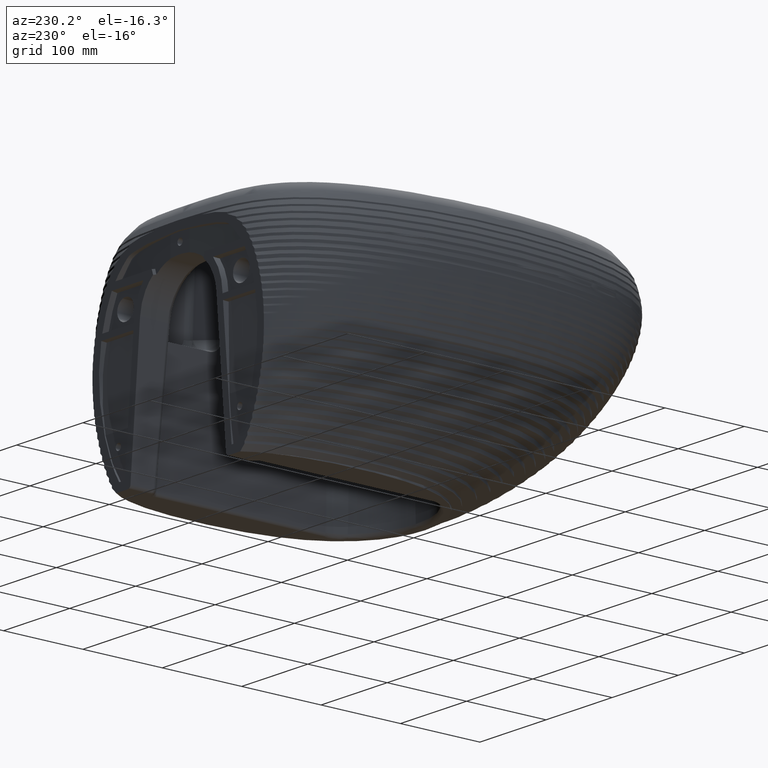
[diagram: clean part render]
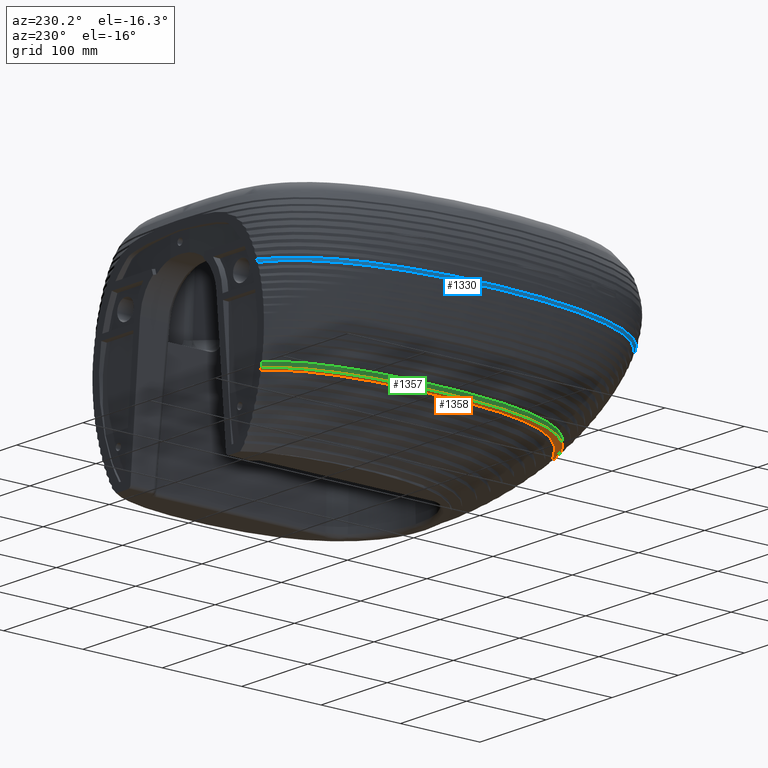
[diagram: same view with three faces highlighted in distinct colors, each labeled with its STEP entity id]
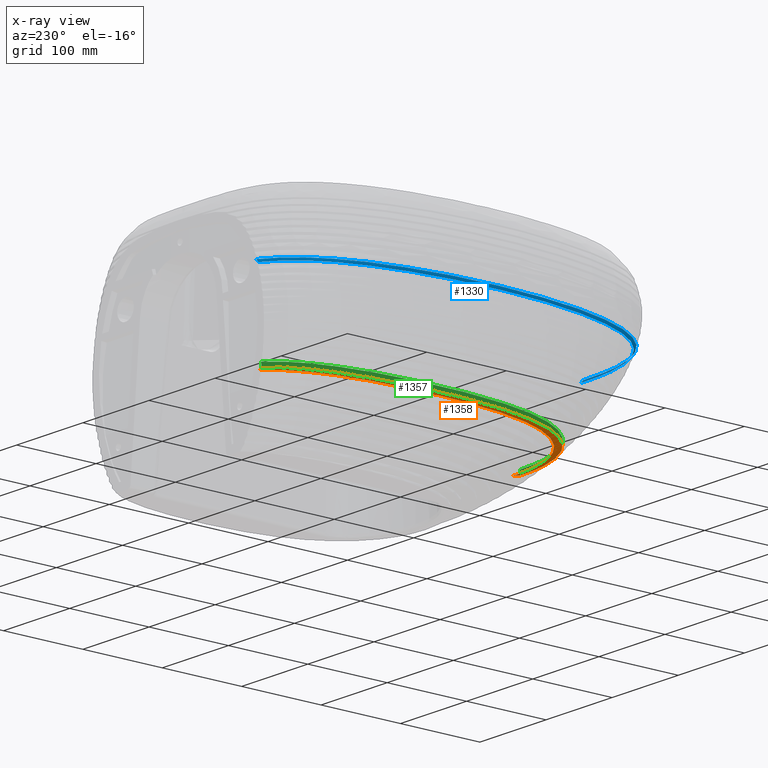
[diagram: x-ray of the same camera — body ghosted, the three highlighted faces saturated]
A machine part, auxiliary view with three faces highlighted in distinct colors.
The next image is the same camera in x-ray (body ghosted, the three faces saturated) — at least one of them is partly hidden behind the body in this view.
Their STEP definitions:

[orange] entity #1358 — the highlighted face is a freeform B-spline surface patch.
#180=B_SPLINE_SURFACE_WITH_KNOTS('',3,5,((#18401,#18402,#18403,#18404,#18405,
#18406,#18407,#18408,#18409,#18410,#18411,#18412,#18413,#18414,#18415,#18416,
#18417,#18418,#18419,#18420,#18421,#18422,#18423),(#18424,#18425,#18426,
#18427,#18428,#18429,#18430,#18431,#18432,#18433,#18434,#18435,#18436,#18437,
#18438,#18439,#18440,#18441,#18442,#18443,#18444,#18445,#18446),(#18447,
#18448,#18449,#18450,#18451,#18452,#18453,#18454,#18455,#18456,#18457,#18458,
#18459,#18460,#18461,#18462,#18463,#18464,#18465,#18466,#18467,#18468,#18469),
(#18470,#18471,#18472,#18473,#18474,#18475,#18476,#18477,#18478,#18479,
#18480,#18481,#18482,#18483,#18484,#18485,#18486,#18487,#18488,#18489,#18490,
#18491,#18492),(#18493,#18494,#18495,#18496,#18497,#18498,#18499,#18500,
#18501,#18502,#18503,#18504,#18505,#18506,#18507,#18508,#18509,#18510,#18511,
#18512,#18513,#18514,#18515),(#18516,#18517,#18518,#18519,#18520,#18521,
#18522,#18523,#18524,#18525,#18526,#18527,#18528,#18529,#18530,#18531,#18532,
#18533,#18534,#18535,#18536,#18537,#18538),(#18539,#18540,#18541,#18542,
#18543,#18544,#18545,#18546,#18547,#18548,#18549,#18550,#18551,#18552,#18553,
#18554,#18555,#18556,#18557,#18558,#18559,#18560,#18561)),.UNSPECIFIED.,
 .F.,.F.,.F.,(4,3,4),(6,5,1,1,1,1,1,1,1,5,6),(0.,0.0099009900990099,1.),
(0.,0.104010834796692,0.214342961471091,0.310058901661744,0.405774841852399,
0.501490782043052,0.597206722233705,0.692922662424357,0.78863860261501,
0.884615384615384,1.),.UNSPECIFIED.);
#826=B_SPLINE_CURVE_WITH_KNOTS('',3,(#7147,#7148,#7149,#7150,#7151,#7152,
#7153,#7154,#7155,#7156,#7157,#7158,#7159,#7160,#7161,#7162),
 .UNSPECIFIED.,.F.,.F.,(4,3,3,3,3,4),(0.,0.0981199321335705,0.366353601161969,
0.634589812097025,0.900562394975735,1.),.UNSPECIFIED.);
#932=B_SPLINE_CURVE_WITH_KNOTS('',5,(#10015,#10016,#10017,#10018,#10019,
#10020,#10021,#10022,#10023,#10024,#10025,#10026,#10027),.UNSPECIFIED.,
 .F.,.F.,(6,1,1,1,1,1,1,1,6),(0.,0.11750028865561,0.243522616343453,0.369544944031299,
0.495567271719142,0.621589599406985,0.747611927094828,0.873634254782672,
1.),.UNSPECIFIED.);
#993=B_SPLINE_CURVE_WITH_KNOTS('',5,(#18149,#18150,#18151,#18152,#18153,
#18154,#18155,#18156,#18157,#18158,#18159,#18160,#18161),.UNSPECIFIED.,
 .F.,.F.,(6,1,1,1,1,1,1,1,6),(0.,0.120002016905589,0.245667093858759,0.371332170811931,
0.496997247765101,0.622662324718272,0.748327401671442,0.873992478624612,
1.),.UNSPECIFIED.);
#994=B_SPLINE_CURVE_WITH_KNOTS('',3,(#18394,#18395,#18396,#18397,#18398,
#18399,#18400),.UNSPECIFIED.,.F.,.F.,(4,3,4),(0.,0.99009900990099,1.),
 .UNSPECIFIED.);
#1358=ADVANCED_FACE('',(#1724),#180,.F.);
#1724=FACE_OUTER_BOUND('',#2066,.T.);
#2066=EDGE_LOOP('',(#2802,#2803,#2804,#2805));
#2802=ORIENTED_EDGE('',*,*,#4855,.F.);
#2803=ORIENTED_EDGE('',*,*,#4598,.F.);
#2804=ORIENTED_EDGE('',*,*,#4775,.T.);
#2805=ORIENTED_EDGE('',*,*,#4857,.F.);
#4089=VERTEX_POINT('',#7146);
#4090=VERTEX_POINT('',#7163);
#4256=VERTEX_POINT('',#10028);
#4298=VERTEX_POINT('',#18162);
#4598=EDGE_CURVE('',#4089,#4090,#826,.T.);
#4775=EDGE_CURVE('',#4089,#4256,#932,.T.);
#4855=EDGE_CURVE('',#4090,#4298,#993,.T.);
#4857=EDGE_CURVE('',#4298,#4256,#994,.T.);
#7146=CARTESIAN_POINT('',(-124.179199126967,-3.44499998660146,120.463790717644));
#7147=CARTESIAN_POINT('',(-124.179199126967,-3.44499998660146,120.463790717644));
#7148=CARTESIAN_POINT('',(-124.233758559738,-3.44499998660146,120.530955663198));
#7149=CARTESIAN_POINT('',(-124.288070789671,-3.44499998660146,120.59832220093));
#7150=CARTESIAN_POINT('',(-124.342129174622,-3.44499998660146,120.665891074178));
#7151=CARTESIAN_POINT('',(-124.489904900742,-3.44499998660146,120.850599502231));
#7152=CARTESIAN_POINT('',(-124.63579521093,-3.44499998660146,121.036833876307));
#7153=CARTESIAN_POINT('',(-124.779657356899,-3.44499998660146,121.224606482354));
#7154=CARTESIAN_POINT('',(-124.92352032672,-3.44499998660146,121.412380163711));
#7155=CARTESIAN_POINT('',(-125.065371810803,-3.44499998660146,121.601713947645));
#7156=CARTESIAN_POINT('',(-125.205058259017,-3.44499998660146,121.792614984001));
#7157=CARTESIAN_POINT('',(-125.343565480949,-3.44499998660146,121.981904442983));
#7158=CARTESIAN_POINT('',(-125.479961541859,-3.44499998660146,122.172758769582));
#7159=CARTESIAN_POINT('',(-125.614085775416,-3.44499998660146,122.365178726399));
#7160=CARTESIAN_POINT('',(-125.664232143188,-3.44499998660146,122.437120698892));
#7161=CARTESIAN_POINT('',(-125.714062593861,-3.44499998660146,122.509283950219));
#7162=CARTESIAN_POINT('',(-125.763568327122,-3.44499998660146,122.58166825778));
#7163=CARTESIAN_POINT('',(-125.763568327122,-3.44499998660146,122.58166825778));
#10015=CARTESIAN_POINT('',(-124.179199112677,-3.44500000135373,120.463790681305));
#10016=CARTESIAN_POINT('',(-130.935991496803,-9.99018896224375,120.463790681305));
#10017=CARTESIAN_POINT('',(-143.146866906442,-25.5991156035314,120.463790681305));
#10018=CARTESIAN_POINT('',(-156.343981744171,-55.3408945599836,120.463790681305));
#10019=CARTESIAN_POINT('',(-164.629329736874,-103.810082742134,120.463790681305));
#10020=CARTESIAN_POINT('',(-169.845463847209,-160.774303989352,120.463790681305));
#10021=CARTESIAN_POINT('',(-168.061762684585,-234.683127114732,120.463790681305));
#10022=CARTESIAN_POINT('',(-158.366057943828,-304.303699977834,120.463790681305));
#10023=CARTESIAN_POINT('',(-136.070808734132,-359.970654418229,120.463790681305));
#10024=CARTESIAN_POINT('',(-102.290183565933,-400.138922627727,120.463790681305));
#10025=CARTESIAN_POINT('',(-65.3164282268226,-416.022531923735,120.463790681305));
#10026=CARTESIAN_POINT('',(-32.0214016950139,-425.034496022754,120.463790681305));
#10027=CARTESIAN_POINT('',(-6.30601955538526E-12,-425.021514339702,120.463790681305));
#10028=CARTESIAN_POINT('',(-1.03998244524282E-13,-425.021514360865,120.463790686097));
#18149=CARTESIAN_POINT('',(-125.763568327122,-3.44499998660135,122.58166825778));
#18150=CARTESIAN_POINT('',(-132.944135915481,-10.1805234660486,122.58166825778));
#18151=CARTESIAN_POINT('',(-145.744373020161,-26.1365413731772,122.58166825778));
#18152=CARTESIAN_POINT('',(-159.497564157781,-56.5880804157657,122.58166825778));
#18153=CARTESIAN_POINT('',(-167.91039805859,-106.281481515763,122.58166825778));
#18154=CARTESIAN_POINT('',(-173.387517346413,-164.517460975289,122.58166825778));
#18155=CARTESIAN_POINT('',(-171.782750144768,-239.776944226691,122.58166825778));
#18156=CARTESIAN_POINT('',(-162.132241040906,-310.359446632448,122.58166825778));
#18157=CARTESIAN_POINT('',(-139.231867282695,-368.188970779573,122.58166825778));
#18158=CARTESIAN_POINT('',(-104.94316319651,-408.825528328322,122.58166825778));
#18159=CARTESIAN_POINT('',(-66.9735949855801,-424.877393735365,122.58166825778));
#18160=CARTESIAN_POINT('',(-32.9992353200961,-434.106666614182,122.58166825778));
#18161=CARTESIAN_POINT('',(1.84403299841064E-12,-434.094594853213,122.58166825778));
#18162=CARTESIAN_POINT('',(2.13916619865425E-14,-434.094594853213,122.58166825778));
#18394=CARTESIAN_POINT('',(2.13916619865425E-14,-434.094594853213,122.58166825778));
#18395=CARTESIAN_POINT('',(1.75631822163112E-7,-431.144952075663,121.871735168617));
#18396=CARTESIAN_POINT('',(3.53638824368434E-7,-428.120795227266,121.165648885833));
#18397=CARTESIAN_POINT('',(5.33573743520549E-7,-425.021514360648,120.463790686097));
#18398=CARTESIAN_POINT('',(5.35373092712074E-7,-424.990521551982,120.4567721041));
#18399=CARTESIAN_POINT('',(5.37172441903589E-7,-424.959528743316,120.449753522103));
#18400=CARTESIAN_POINT('',(5.38971791095118E-7,-424.92853593465,120.442734940105));
#18401=CARTESIAN_POINT('',(-71.4650285424776,36.3535121898902,120.442734940105));
#18402=CARTESIAN_POINT('',(-80.308760852201,29.8303515530882,120.442734940105));
#18403=CARTESIAN_POINT('',(-89.1524931619244,23.3071909162862,120.442734940105));
#18404=CARTESIAN_POINT('',(-97.9962254716479,16.7840302794843,120.442734940105));
#18405=CARTESIAN_POINT('',(-106.839957781371,10.2608696426823,120.442734940105));
#18406=CARTESIAN_POINT('',(-115.683690091095,3.73770900588035,120.442734940105));
#18407=CARTESIAN_POINT('',(-125.064903071244,-3.1818988129003,120.442734940105));
#18408=CARTESIAN_POINT('',(-140.022036950885,-18.9961185081187,120.442734940105));
#18409=CARTESIAN_POINT('',(-155.369147207821,-49.8830012412087,120.442734940105));
#18410=CARTESIAN_POINT('',(-164.362245632952,-101.238392778991,120.442734940105));
#18411=CARTESIAN_POINT('',(-169.808820815353,-160.736228614826,120.442734940105));
#18412=CARTESIAN_POINT('',(-168.023455979202,-234.630548018602,120.442734940105));
#18413=CARTESIAN_POINT('',(-158.327254733861,-304.241162134122,120.442734940105));
#18414=CARTESIAN_POINT('',(-136.038054478566,-359.886829058462,120.442734940105));
#18415=CARTESIAN_POINT('',(-102.263028722558,-400.049746344846,120.442734940105));
#18416=CARTESIAN_POINT('',(-65.2995480669024,-415.931820695346,120.442734940105));
#18417=CARTESIAN_POINT('',(-32.0115016702587,-424.94153054206,120.442734940105));
#18418=CARTESIAN_POINT('',(1.80066724942662E-5,-424.92853592756,120.442734940105));
#18419=CARTESIAN_POINT('',(38.4847099166948,-424.912913622196,120.442734940105));
#18420=CARTESIAN_POINT('',(76.969401826717,-424.897291316833,120.442734940105));
#18421=CARTESIAN_POINT('',(115.454093736739,-424.88166901147,120.442734940105));
#18422=CARTESIAN_POINT('',(153.938785646761,-424.866046706107,120.442734940105));
#18423=CARTESIAN_POINT('',(192.423477556784,-424.850424400744,120.442734940105));
#18424=CARTESIAN_POINT('',(-71.4690384588595,36.3535487840644,120.449753522103));
#18425=CARTESIAN_POINT('',(-80.3134998076302,29.8299590419361,120.449753522103));
#18426=CARTESIAN_POINT('',(-89.1579611564009,23.3063692998077,120.449753522103));
#18427=CARTESIAN_POINT('',(-98.0024225051716,16.7827795576794,120.449753522103));
#18428=CARTESIAN_POINT('',(-106.846883853942,10.259189815551,120.449753522103));
#18429=CARTESIAN_POINT('',(-115.691345202713,3.7356000734227,120.449753522103));
#18430=CARTESIAN_POINT('',(-125.073331529492,-3.18446292969831,120.449753522103));
#18431=CARTESIAN_POINT('',(-140.03177708392,-18.9997252416559,120.449753522103));
#18432=CARTESIAN_POINT('',(-155.380294071792,-49.8886506745786,120.449753522103));
#18433=CARTESIAN_POINT('',(-164.373606221435,-101.247434121709,120.449753522103));
#18434=CARTESIAN_POINT('',(-169.821035162085,-160.748920409224,120.449753522103));
#18435=CARTESIAN_POINT('',(-168.036224883903,-234.648074387968,120.449753522103));
#18436=CARTESIAN_POINT('',(-158.340189140127,-304.262008086771,120.449753522103));
#18437=CARTESIAN_POINT('',(-136.048972398711,-359.914771269698,120.449753522103));
#18438=CARTESIAN_POINT('',(-102.272079704585,-400.079472533708,120.449753522103));
#18439=CARTESIAN_POINT('',(-65.3051733995372,-415.962058374897,120.449753522103));
#18440=CARTESIAN_POINT('',(-32.0147991794805,-424.972519719293,120.449753522103));
#18441=CARTESIAN_POINT('',(1.80066724942662E-5,-424.959528736228,120.449753522103));
#18442=CARTESIAN_POINT('',(38.4886742279099,-424.943910796625,120.449753522103));
#18443=CARTESIAN_POINT('',(76.9773304491474,-424.928292857023,120.449753522103));
#18444=CARTESIAN_POINT('',(115.465986670385,-424.912674917421,120.449753522103));
#18445=CARTESIAN_POINT('',(153.954642891622,-424.897056977818,120.449753522103));
#18446=CARTESIAN_POINT('',(192.44329911286,-424.881439038216,120.449753522103));
#18447=CARTESIAN_POINT('',(-71.4730483752414,36.3535853782387,120.4567721041));
#18448=CARTESIAN_POINT('',(-80.3182387630593,29.829566530784,120.4567721041));
#18449=CARTESIAN_POINT('',(-89.1634291508773,23.3055476833292,120.4567721041));
#18450=CARTESIAN_POINT('',(-98.0086195386952,16.7815288358745,120.4567721041));
#18451=CARTESIAN_POINT('',(-106.853809926513,10.2575099884198,120.4567721041));
#18452=CARTESIAN_POINT('',(-115.699000314331,3.73349114096504,120.4567721041));
#18453=CARTESIAN_POINT('',(-125.081759987739,-3.18702704649633,120.4567721041));
#18454=CARTESIAN_POINT('',(-140.041517216955,-19.0033319751931,120.4567721041));
#18455=CARTESIAN_POINT('',(-155.391440935763,-49.8943001079486,120.4567721041));
#18456=CARTESIAN_POINT('',(-164.384966809919,-101.256475464426,120.4567721041));
#18457=CARTESIAN_POINT('',(-169.833249508817,-160.761612203621,120.4567721041));
#18458=CARTESIAN_POINT('',(-168.048993788603,-234.665600757334,120.4567721041));
#18459=CARTESIAN_POINT('',(-158.353123546394,-304.28285403942,120.4567721041));
#18460=CARTESIAN_POINT('',(-136.059890318856,-359.942713480935,120.4567721041));
#18461=CARTESIAN_POINT('',(-102.281130686612,-400.109198722569,120.4567721041));
#18462=CARTESIAN_POINT('',(-65.3107987321721,-415.992296054448,120.4567721041));
#18463=CARTESIAN_POINT('',(-32.0180966887023,-425.003508896527,120.4567721041));
#18464=CARTESIAN_POINT('',(1.80066724942662E-5,-424.990521544896,120.4567721041));
#18465=CARTESIAN_POINT('',(38.4926385391252,-424.974907971054,120.4567721041));
#18466=CARTESIAN_POINT('',(76.9852590715778,-424.959294397212,120.4567721041));
#18467=CARTESIAN_POINT('',(115.47787960403,-424.943680823371,120.4567721041));
#18468=CARTESIAN_POINT('',(153.970500136483,-424.928067249529,120.4567721041));
#18469=CARTESIAN_POINT('',(192.463120668936,-424.912453675687,120.4567721041));
#18470=CARTESIAN_POINT('',(-71.4770582916233,36.3536219724129,120.463790686097));
#18471=CARTESIAN_POINT('',(-80.3229777184885,29.8291740196318,120.463790686097));
#18472=CARTESIAN_POINT('',(-89.1688971453537,23.3047260668507,120.463790686097));
#18473=CARTESIAN_POINT('',(-98.0148165722189,16.7802781140696,120.463790686097));
#18474=CARTESIAN_POINT('',(-106.860735999084,10.2558301612885,120.463790686097));
#18475=CARTESIAN_POINT('',(-115.706655425949,3.73138220850738,120.463790686097));
#18476=CARTESIAN_POINT('',(-125.090188445987,-3.18959116329434,120.463790686097));
#18477=CARTESIAN_POINT('',(-140.05125734999,-19.0069387087303,120.463790686097));
#18478=CARTESIAN_POINT('',(-155.402587799734,-49.8999495413185,120.463790686097));
#18479=CARTESIAN_POINT('',(-164.396327398403,-101.265516807144,120.463790686097));
#18480=CARTESIAN_POINT('',(-169.845463855549,-160.774303998018,120.463790686097));
#18481=CARTESIAN_POINT('',(-168.061762693304,-234.6831271267,120.463790686097));
#18482=CARTESIAN_POINT('',(-158.36605795266,-304.303699992069,120.463790686097));
#18483=CARTESIAN_POINT('',(-136.070808239001,-359.970655692171,120.463790686097));
#18484=CARTESIAN_POINT('',(-102.290181668639,-400.138924911431,120.463790686097));
#18485=CARTESIAN_POINT('',(-65.3164240648069,-416.022533733999,120.463790686097));
#18486=CARTESIAN_POINT('',(-32.0213941979241,-425.034498073761,120.463790686097));
#18487=CARTESIAN_POINT('',(1.80066724942662E-5,-425.021514353564,120.463790686097));
#18488=CARTESIAN_POINT('',(38.4966028503404,-425.005905145483,120.463790686097));
#18489=CARTESIAN_POINT('',(76.9931876940082,-424.990295937402,120.463790686097));
#18490=CARTESIAN_POINT('',(115.489772537676,-424.974686729321,120.463790686097));
#18491=CARTESIAN_POINT('',(153.986357381344,-424.95907752124,120.463790686097));
#18492=CARTESIAN_POINT('',(192.482942225012,-424.943468313159,120.463790686097));
#18493=CARTESIAN_POINT('',(-71.8780499298119,36.3572813898379,121.165648885833));
#18494=CARTESIAN_POINT('',(-80.7968732614038,29.7899229044186,121.165648885833));
#18495=CARTESIAN_POINT('',(-89.7156965929957,23.2225644189994,121.165648885833));
#18496=CARTESIAN_POINT('',(-98.6345199245877,16.6552059335802,121.165648885833));
#18497=CARTESIAN_POINT('',(-107.55334325618,10.087847448161,121.165648885833));
#18498=CARTESIAN_POINT('',(-116.472166587771,3.52048896274177,121.165648885833));
#18499=CARTESIAN_POINT('',(-125.933034270751,-3.44600284309568,121.165648885833));
#18500=CARTESIAN_POINT('',(-141.025270653491,-19.3676120624486,121.165648885833));
#18501=CARTESIAN_POINT('',(-156.517274196831,-50.4648928783094,121.165648885833));
#18502=CARTESIAN_POINT('',(-165.532386246777,-102.1696510789,121.165648885833));
#18503=CARTESIAN_POINT('',(-171.066898528765,-162.043483437752,121.165648885833));
#18504=CARTESIAN_POINT('',(-169.338653163345,-236.435764063269,121.165648885833));
#18505=CARTESIAN_POINT('',(-159.659498579309,-306.388295256953,121.165648885833));
#18506=CARTESIAN_POINT('',(-137.1626002535,-362.764876815789,121.165648885833));
#18507=CARTESIAN_POINT('',(-103.19527987134,-403.111543797594,121.165648885833));
#18508=CARTESIAN_POINT('',(-65.878957328292,-419.046301689094,121.165648885833));
#18509=CARTESIAN_POINT('',(-32.3511451201027,-428.133415797138,121.165648885833));
#18510=CARTESIAN_POINT('',(1.80066724942662E-5,-428.12079522038,121.165648885833));
#18511=CARTESIAN_POINT('',(38.8930339718605,-428.105622588366,121.165648885833));
#18512=CARTESIAN_POINT('',(77.7860499370485,-428.090449956353,121.165648885833));
#18513=CARTESIAN_POINT('',(116.679065902236,-428.075277324339,121.165648885833));
#18514=CARTESIAN_POINT('',(155.572081867424,-428.060104692325,121.165648885833));
#18515=CARTESIAN_POINT('',(194.465097832612,-428.044932060312,121.165648885833));
#18516=CARTESIAN_POINT('',(-72.2626053367494,36.3521467340742,121.871735168617));
#18517=CARTESIAN_POINT('',(-81.2525038732296,29.7418542400351,121.871735168617));
#18518=CARTESIAN_POINT('',(-90.2424024097098,23.131561745996,121.871735168617));
#18519=CARTESIAN_POINT('',(-99.23230094619,16.5212692519569,121.871735168617));
#18520=CARTESIAN_POINT('',(-108.22219948267,9.91097675791786,121.871735168617));
#18521=CARTESIAN_POINT('',(-117.21209801915,3.30068426387877,121.871735168617));
#18522=CARTESIAN_POINT('',(-126.748360525415,-3.7113508787365,121.871735168617));
#18523=CARTESIAN_POINT('',(-141.968950460577,-19.7366707780849,121.871735168617));
#18524=CARTESIAN_POINT('',(-157.599023500674,-51.0348411645403,121.871735168617));
#18525=CARTESIAN_POINT('',(-166.630550773849,-103.066643439107,121.871735168617));
#18526=CARTESIAN_POINT('',(-172.247164372155,-163.291009738623,121.871735168617));
#18527=CARTESIAN_POINT('',(-170.579263221496,-238.132952956993,121.871735168617));
#18528=CARTESIAN_POINT('',(-160.915230730339,-308.405673971084,121.871735168617));
#18529=CARTESIAN_POINT('',(-138.216043689461,-365.504546850691,121.871735168617));
#18530=CARTESIAN_POINT('',(-104.08029553532,-406.006037047066,121.871735168617));
#18531=CARTESIAN_POINT('',(-66.4316717061633,-421.997146048035,121.871735168617));
#18532=CARTESIAN_POINT('',(-32.6773629186412,-431.157272163453,121.871735168617));
#18533=CARTESIAN_POINT('',(1.80066724942662E-5,-431.144952068941,121.871735168617));
#18534=CARTESIAN_POINT('',(39.2852175232515,-431.130140680841,121.871735168617));
#18535=CARTESIAN_POINT('',(78.5704170398304,-431.115329292742,121.871735168617));
#18536=CARTESIAN_POINT('',(117.855616556409,-431.100517904642,121.871735168617));
#18537=CARTESIAN_POINT('',(157.140816072988,-431.085706516542,121.871735168617));
#18538=CARTESIAN_POINT('',(196.426015589567,-431.070895128442,121.871735168617));
#18539=CARTESIAN_POINT('',(-72.6316903933558,36.3371285534656,122.58166825778));
#18540=CARTESIAN_POINT('',(-81.6905656675479,29.6839539581122,122.58166825778));
#18541=CARTESIAN_POINT('',(-90.74944094174,23.0307793627589,122.58166825778));
#18542=CARTESIAN_POINT('',(-99.8083162159321,16.3776047674056,122.58166825778));
#18543=CARTESIAN_POINT('',(-108.867191490124,9.72443017205225,122.58166825778));
#18544=CARTESIAN_POINT('',(-117.926066764316,3.07125557669893,122.58166825778));
#18545=CARTESIAN_POINT('',(-127.535498091672,-3.98626784070535,122.58166825778));
#18546=CARTESIAN_POINT('',(-142.881031870448,-20.1146064017095,122.58166825778));
#18547=CARTESIAN_POINT('',(-158.646083346323,-51.6101660966223,122.58166825778));
#18548=CARTESIAN_POINT('',(-167.691787406088,-103.957083451789,122.58166825778));
#18549=CARTESIAN_POINT('',(-173.387517346413,-164.517460975289,122.58166825778));
#18550=CARTESIAN_POINT('',(-171.782750144768,-239.776944226691,122.58166825778));
#18551=CARTESIAN_POINT('',(-162.132241040906,-310.359446632448,122.58166825778));
#18552=CARTESIAN_POINT('',(-139.231866781765,-368.188972044555,122.58166825778));
#18553=CARTESIAN_POINT('',(-104.943161321659,-408.825530550263,122.58166825778));
#18554=CARTESIAN_POINT('',(-66.9735908342936,-424.877395490346,122.58166825778));
#18555=CARTESIAN_POINT('',(-32.9992278945003,-434.106668631375,122.58166825778));
#18556=CARTESIAN_POINT('',(1.80066724942662E-5,-434.094594846625,122.58166825778));
#18557=CARTESIAN_POINT('',(39.6721680509856,-434.080079575529,122.58166825778));
#18558=CARTESIAN_POINT('',(79.3443180952988,-434.065564304434,122.58166825778));
#18559=CARTESIAN_POINT('',(119.016468139612,-434.051049033338,122.58166825778));
#18560=CARTESIAN_POINT('',(158.688618183925,-434.036533762242,122.58166825778));
#18561=CARTESIAN_POINT('',(198.360768228238,-434.022018491147,122.58166825778));

[blue] entity #1330 — the highlighted face is a freeform B-spline surface patch.
#152=B_SPLINE_SURFACE_WITH_KNOTS('',3,5,((#12341,#12342,#12343,#12344,#12345,
#12346,#12347,#12348,#12349,#12350,#12351,#12352,#12353,#12354,#12355,#12356,
#12357,#12358,#12359,#12360,#12361,#12362,#12363),(#12364,#12365,#12366,
#12367,#12368,#12369,#12370,#12371,#12372,#12373,#12374,#12375,#12376,#12377,
#12378,#12379,#12380,#12381,#12382,#12383,#12384,#12385,#12386),(#12387,
#12388,#12389,#12390,#12391,#12392,#12393,#12394,#12395,#12396,#12397,#12398,
#12399,#12400,#12401,#12402,#12403,#12404,#12405,#12406,#12407,#12408,#12409),
(#12410,#12411,#12412,#12413,#12414,#12415,#12416,#12417,#12418,#12419,
#12420,#12421,#12422,#12423,#12424,#12425,#12426,#12427,#12428,#12429,#12430,
#12431,#12432),(#12433,#12434,#12435,#12436,#12437,#12438,#12439,#12440,
#12441,#12442,#12443,#12444,#12445,#12446,#12447,#12448,#12449,#12450,#12451,
#12452,#12453,#12454,#12455),(#12456,#12457,#12458,#12459,#12460,#12461,
#12462,#12463,#12464,#12465,#12466,#12467,#12468,#12469,#12470,#12471,#12472,
#12473,#12474,#12475,#12476,#12477,#12478),(#12479,#12480,#12481,#12482,
#12483,#12484,#12485,#12486,#12487,#12488,#12489,#12490,#12491,#12492,#12493,
#12494,#12495,#12496,#12497,#12498,#12499,#12500,#12501)),.UNSPECIFIED.,
 .F.,.F.,.F.,(4,3,4),(6,5,1,1,1,1,1,1,1,5,6),(0.,0.99009900990099,1.),(0.,
0.101185619604476,0.250754000828345,0.341270388202772,0.431786775577201,
0.522303162951628,0.612819550326055,0.703335937700482,0.793852325074909,
0.884615384615384,1.),.UNSPECIFIED.);
#840=B_SPLINE_CURVE_WITH_KNOTS('',3,(#7365,#7366,#7367,#7368),
 .UNSPECIFIED.,.F.,.F.,(4,4),(0.,1.),.UNSPECIFIED.);
#951=B_SPLINE_CURVE_WITH_KNOTS('',5,(#12075,#12076,#12077,#12078,#12079,
#12080,#12081,#12082,#12083,#12084,#12085,#12086,#12087),.UNSPECIFIED.,
 .F.,.F.,(6,1,1,1,1,1,1,1,6),(0.,0.169288791463737,0.287915640180642,0.406542488897549,
0.525169337614454,0.643796186331359,0.762423035048264,0.881049883765169,
1.),.UNSPECIFIED.);
#952=B_SPLINE_CURVE_WITH_KNOTS('',5,(#12320,#12321,#12322,#12323,#12324,
#12325,#12326,#12327,#12328,#12329,#12330,#12331,#12332),.UNSPECIFIED.,
 .F.,.F.,(6,1,1,1,1,1,1,1,6),(0.,0.164402048954001,0.283726732084825,0.403051415215651,
0.522376098346475,0.641700781477299,0.761025464608122,0.880350147738946,
1.),.UNSPECIFIED.);
#953=B_SPLINE_CURVE_WITH_KNOTS('',3,(#12334,#12335,#12336,#12337,#12338,
#12339,#12340),.UNSPECIFIED.,.F.,.F.,(4,3,4),(0.,0.00990099009900991,1.),
 .UNSPECIFIED.);
#1330=ADVANCED_FACE('',(#1696),#152,.F.);
#1696=FACE_OUTER_BOUND('',#2038,.T.);
#2038=EDGE_LOOP('',(#2690,#2691,#2692,#2693));
#2690=ORIENTED_EDGE('',*,*,#4799,.F.);
#2691=ORIENTED_EDGE('',*,*,#4626,.F.);
#2692=ORIENTED_EDGE('',*,*,#4801,.T.);
#2693=ORIENTED_EDGE('',*,*,#4802,.F.);
#4117=VERTEX_POINT('',#7364);
#4118=VERTEX_POINT('',#7369);
#4270=VERTEX_POINT('',#12088);
#4271=VERTEX_POINT('',#12333);
#4626=EDGE_CURVE('',#4117,#4118,#840,.T.);
#4799=EDGE_CURVE('',#4118,#4270,#951,.T.);
#4801=EDGE_CURVE('',#4117,#4271,#952,.T.);
#4802=EDGE_CURVE('',#4270,#4271,#953,.T.);
#7364=CARTESIAN_POINT('',(-120.788679457285,-3.44499998660146,230.055305510148));
#7365=CARTESIAN_POINT('',(-120.788679457286,-3.44499998660131,230.055305510148));
#7366=CARTESIAN_POINT('',(-119.989035724562,-3.44499998660131,231.288577569926));
#7367=CARTESIAN_POINT('',(-119.14471989941,-3.44499998660143,232.492974779918));
#7368=CARTESIAN_POINT('',(-118.258657093573,-3.44499998660143,233.665809025014));
#7369=CARTESIAN_POINT('',(-118.258657093573,-3.44499998660146,233.665809025014));
#12075=CARTESIAN_POINT('',(-118.258657093573,-3.44499998660142,233.665809025014));
#12076=CARTESIAN_POINT('',(-133.486769102175,-11.945645384141,233.665809025014));
#12077=CARTESIAN_POINT('',(-155.242744517952,-31.2208098017797,233.665809025014));
#12078=CARTESIAN_POINT('',(-177.136538387744,-70.0400438617404,233.665809025014));
#12079=CARTESIAN_POINT('',(-191.643286536147,-133.527721892716,233.665809025014));
#12080=CARTESIAN_POINT('',(-199.714967462862,-203.845382597754,233.665809025014));
#12081=CARTESIAN_POINT('',(-198.265161445416,-282.73381708429,233.665809025014));
#12082=CARTESIAN_POINT('',(-187.992062899298,-362.743544084244,233.665809025014));
#12083=CARTESIAN_POINT('',(-161.047999384649,-444.541786458989,233.665809025014));
#12084=CARTESIAN_POINT('',(-123.218893838,-487.466654391132,233.665809025014));
#12085=CARTESIAN_POINT('',(-80.3223908378835,-506.456113644563,233.665809025014));
#12086=CARTESIAN_POINT('',(-41.5221670764823,-513.607811381244,233.665809025014));
#12087=CARTESIAN_POINT('',(2.21225455781277E-12,-513.594546834426,233.665809025014));
#12088=CARTESIAN_POINT('',(-8.03424733958959E-14,-513.594546834426,233.665809025014));
#12320=CARTESIAN_POINT('',(-120.788679457285,-3.44499998660078,230.055305510148));
#12321=CARTESIAN_POINT('',(-135.19935328027,-11.9555047680663,230.055305510148));
#12322=CARTESIAN_POINT('',(-156.212171829532,-31.1747054216169,230.055305510149));
#12323=CARTESIAN_POINT('',(-177.528577540477,-69.4900056767923,230.055305510148));
#12324=CARTESIAN_POINT('',(-191.23723830258,-132.036845630742,230.055305510148));
#12325=CARTESIAN_POINT('',(-199.205036069387,-201.625830949059,230.055305510148));
#12326=CARTESIAN_POINT('',(-197.93418622734,-280.851468705392,230.055305510148));
#12327=CARTESIAN_POINT('',(-187.783040750254,-360.356026608605,230.055305510148));
#12328=CARTESIAN_POINT('',(-160.776402640965,-441.344139392242,230.055305510148));
#12329=CARTESIAN_POINT('',(-123.201024376522,-484.154344051002,230.055305510148));
#12330=CARTESIAN_POINT('',(-80.146995991544,-503.011377046372,230.055305510148));
#12331=CARTESIAN_POINT('',(-41.3567576219128,-510.557309589309,230.055305510148));
#12332=CARTESIAN_POINT('',(1.46168376448713E-12,-510.544165054181,230.055305510148));
#12333=CARTESIAN_POINT('',(8.46535261631049E-14,-510.544165054181,230.055305510148));
#12334=CARTESIAN_POINT('',(-4.96533259918586E-10,-513.622715760419,233.701627124403));
#12335=CARTESIAN_POINT('',(-3.31048954102557E-10,-513.613326118421,233.68968775794));
#12336=CARTESIAN_POINT('',(-1.65564648291079E-10,-513.603936476424,233.677748391477));
#12337=CARTESIAN_POINT('',(-8.03424733958959E-14,-513.594546834426,233.665809025014));
#12338=CARTESIAN_POINT('',(1.65483502388383E-8,-512.655582634653,232.471872378701));
#12339=CARTESIAN_POINT('',(4.06245000607585E-8,-511.638280897169,231.267768045519));
#12340=CARTESIAN_POINT('',(7.17320453774603E-8,-510.544165054158,230.055305510148));
#12341=CARTESIAN_POINT('',(-39.6068956659232,30.0758739140684,230.055305510148));
#12342=CARTESIAN_POINT('',(-52.7896963683744,24.8598717853596,230.055305510148));
#12343=CARTESIAN_POINT('',(-65.9724970708255,19.6438696566509,230.055305510148));
#12344=CARTESIAN_POINT('',(-79.1552977732767,14.4278675279421,230.055305510148));
#12345=CARTESIAN_POINT('',(-92.3380984757278,9.21186539923327,230.055305510148));
#12346=CARTESIAN_POINT('',(-105.520899178179,3.99586327052448,230.055305510148));
#12347=CARTESIAN_POINT('',(-125.00716776822,-3.7142144846027,230.055305510148));
#12348=CARTESIAN_POINT('',(-150.796555728407,-22.0338012577846,230.055305510148));
#12349=CARTESIAN_POINT('',(-175.780256084861,-61.6196168366394,230.055305510148));
#12350=CARTESIAN_POINT('',(-190.830357442461,-128.48323809328,230.055305510148));
#12351=CARTESIAN_POINT('',(-199.205036069387,-201.625830949059,230.055305510148));
#12352=CARTESIAN_POINT('',(-197.93418622734,-280.851468705392,230.055305510148));
#12353=CARTESIAN_POINT('',(-187.783040750254,-360.356026608605,230.055305510148));
#12354=CARTESIAN_POINT('',(-160.776402169594,-441.344140805799,230.055305510148));
#12355=CARTESIAN_POINT('',(-123.201022737154,-484.154345918759,230.055305510148));
#12356=CARTESIAN_POINT('',(-80.1469922356073,-503.011378691417,230.055305510148));
#12357=CARTESIAN_POINT('',(-41.356750857036,-510.557310905292,230.055305510148));
#12358=CARTESIAN_POINT('',(1.80066724942662E-5,-510.544165048457,230.055305510148));
#12359=CARTESIAN_POINT('',(52.575756341732,-510.527453077282,230.055305510148));
#12360=CARTESIAN_POINT('',(105.151494676792,-510.510741106107,230.055305510148));
#12361=CARTESIAN_POINT('',(157.727233011851,-510.494029134932,230.055305510148));
#12362=CARTESIAN_POINT('',(210.302971346911,-510.477317163757,230.055305510148));
#12363=CARTESIAN_POINT('',(262.87870968197,-510.460605192581,230.055305510148));
#12364=CARTESIAN_POINT('',(-39.6704403043272,29.7009849725454,231.267768045518));
#12365=CARTESIAN_POINT('',(-52.8507349140711,24.4667135338463,231.267768045518));
#12366=CARTESIAN_POINT('',(-66.0310295238149,19.2324420951471,231.267768045518));
#12367=CARTESIAN_POINT('',(-79.2113241335588,13.998170656448,231.267768045518));
#12368=CARTESIAN_POINT('',(-92.3916187433026,8.76389921774885,231.267768045518));
#12369=CARTESIAN_POINT('',(-105.571913353046,3.52962777904971,231.267768045519));
#12370=CARTESIAN_POINT('',(-125.054477540911,-4.20745491148248,231.267768045519));
#12371=CARTESIAN_POINT('',(-150.820061046086,-22.5853569322739,231.267768045519));
#12372=CARTESIAN_POINT('',(-175.76500289602,-62.271608094996,231.267768045519));
#12373=CARTESIAN_POINT('',(-191.028485509652,-129.205098196623,231.267768045519));
#12374=CARTESIAN_POINT('',(-199.419894038257,-202.382642641349,231.267768045519));
#12375=CARTESIAN_POINT('',(-198.088602907737,-281.503111296689,231.267768045519));
#12376=CARTESIAN_POINT('',(-187.898107758478,-361.184195999325,231.267768045519));
#12377=CARTESIAN_POINT('',(-160.904945652452,-442.479579843678,231.267768045519));
#12378=CARTESIAN_POINT('',(-123.24378826506,-485.334519669763,231.267768045519));
#12379=CARTESIAN_POINT('',(-80.2337354284446,-504.240678266227,231.267768045519));
#12380=CARTESIAN_POINT('',(-41.4284827731059,-511.651471906629,231.267768045519));
#12381=CARTESIAN_POINT('',(1.80066724942662E-5,-511.638280891448,231.267768045519));
#12382=CARTESIAN_POINT('',(52.666947180697,-511.621511511693,231.267768045519));
#12383=CARTESIAN_POINT('',(105.333876354722,-511.604742131938,231.267768045519));
#12384=CARTESIAN_POINT('',(158.000805528746,-511.587972752182,231.267768045519));
#12385=CARTESIAN_POINT('',(210.667734702771,-511.571203372427,231.267768045519));
#12386=CARTESIAN_POINT('',(263.334663876795,-511.554433992672,231.267768045519));
#12387=CARTESIAN_POINT('',(-39.7289777774363,29.3069255867022,232.4718723787));
#12388=CARTESIAN_POINT('',(-52.9040583937481,24.0558374959943,232.4718723787));
#12389=CARTESIAN_POINT('',(-66.07913901006,18.8047494052864,232.4718723787));
#12390=CARTESIAN_POINT('',(-79.2542196263718,13.5536613145785,232.471872378701));
#12391=CARTESIAN_POINT('',(-92.4293002426837,8.30257322387066,232.471872378701));
#12392=CARTESIAN_POINT('',(-105.604380858996,3.05148513316279,232.471872378701));
#12393=CARTESIAN_POINT('',(-125.079237938277,-4.71045523406676,232.471872378701));
#12394=CARTESIAN_POINT('',(-150.815630208957,-23.1419025576405,232.471872378701));
#12395=CARTESIAN_POINT('',(-175.717074028307,-62.919753050899,232.471872378701));
#12396=CARTESIAN_POINT('',(-191.188282727239,-129.914128534526,232.471872378701));
#12397=CARTESIAN_POINT('',(-199.590669933273,-203.122514881326,232.471872378701));
#12398=CARTESIAN_POINT('',(-198.199070481341,-282.129881936685,232.471872378701));
#12399=CARTESIAN_POINT('',(-187.967848991478,-361.979743536608,232.471872378701));
#12400=CARTESIAN_POINT('',(-160.995830399347,-443.546093451939,232.471872378701));
#12401=CARTESIAN_POINT('',(-123.249838036163,-486.439948796152,232.471872378701));
#12402=CARTESIAN_POINT('',(-80.2928237536237,-505.390467113558,232.471872378701));
#12403=CARTESIAN_POINT('',(-41.484000762792,-512.668813701803,232.471872378701));
#12404=CARTESIAN_POINT('',(1.80066724942662E-5,-512.655582628915,232.471872378701));
#12405=CARTESIAN_POINT('',(52.7375256948998,-512.638762324883,232.471872378701));
#12406=CARTESIAN_POINT('',(105.475033383127,-512.621942020852,232.471872378701));
#12407=CARTESIAN_POINT('',(158.212541071354,-512.60512171682,232.471872378701));
#12408=CARTESIAN_POINT('',(210.950048759582,-512.588301412788,232.471872378701));
#12409=CARTESIAN_POINT('',(263.687556447809,-512.571481108757,232.471872378701));
#12410=CARTESIAN_POINT('',(-39.7818666549084,28.8931138353321,233.665809025013));
#12411=CARTESIAN_POINT('',(-52.9491720554709,23.6268801595416,233.665809025013));
#12412=CARTESIAN_POINT('',(-66.1164774560335,18.3606464837511,233.665809025013));
#12413=CARTESIAN_POINT('',(-79.283782856596,13.0944128079606,233.665809025013));
#12414=CARTESIAN_POINT('',(-92.4510882571586,7.82817913217007,233.665809025014));
#12415=CARTESIAN_POINT('',(-105.618393657721,2.56194545637956,233.665809025014));
#12416=CARTESIAN_POINT('',(-125.081757735944,-5.22238248580731,233.665809025014));
#12417=CARTESIAN_POINT('',(-150.784404904825,-23.7019485257299,233.665809025014));
#12418=CARTESIAN_POINT('',(-175.639344289161,-63.56163054502,233.665809025014));
#12419=CARTESIAN_POINT('',(-191.308167648867,-130.608283373581,233.665809025014));
#12420=CARTESIAN_POINT('',(-199.714967462862,-203.845382597754,233.665809025014));
#12421=CARTESIAN_POINT('',(-198.265161445416,-282.73381708429,233.665809025014));
#12422=CARTESIAN_POINT('',(-187.992062899298,-362.743544084244,233.665809025014));
#12423=CARTESIAN_POINT('',(-161.047998916244,-444.541787880999,233.665809025014));
#12424=CARTESIAN_POINT('',(-123.218892194137,-487.466656256431,233.665809025014));
#12425=CARTESIAN_POINT('',(-80.3223871105967,-506.456115294561,233.665809025014));
#12426=CARTESIAN_POINT('',(-41.5221603368202,-513.607812623505,233.665809025014));
#12427=CARTESIAN_POINT('',(1.80066724942662E-5,-513.594546828673,233.665809025014));
#12428=CARTESIAN_POINT('',(52.7860369261735,-513.577682383576,233.665809025014));
#12429=CARTESIAN_POINT('',(105.572055845675,-513.560817938479,233.665809025014));
#12430=CARTESIAN_POINT('',(158.358074765176,-513.543953493382,233.665809025014));
#12431=CARTESIAN_POINT('',(211.144093684677,-513.527089048285,233.665809025014));
#12432=CARTESIAN_POINT('',(263.930112604178,-513.510224603188,233.665809025014));
#12433=CARTESIAN_POINT('',(-39.7823955436831,28.8889757178184,233.677748391477));
#12434=CARTESIAN_POINT('',(-52.9496231920882,23.6225905861771,233.677748391477));
#12435=CARTESIAN_POINT('',(-66.1168508404932,18.3562054545357,233.677748391477));
#12436=CARTESIAN_POINT('',(-79.2840784888983,13.0898203228944,233.677748391477));
#12437=CARTESIAN_POINT('',(-92.4513061373033,7.82343519125307,233.677748391477));
#12438=CARTESIAN_POINT('',(-105.618533785708,2.55705005961173,233.677748391477));
#12439=CARTESIAN_POINT('',(-125.08178293392,-5.22750175832471,233.677748391477));
#12440=CARTESIAN_POINT('',(-150.784092651783,-23.7075489854108,233.677748391477));
#12441=CARTESIAN_POINT('',(-175.638566991769,-63.5680493199612,233.677748391477));
#12442=CARTESIAN_POINT('',(-191.309366498083,-130.615224921972,233.677748391477));
#12443=CARTESIAN_POINT('',(-199.716210438158,-203.852611274919,233.677748391477));
#12444=CARTESIAN_POINT('',(-198.265822355057,-282.739856435766,233.677748391477));
#12445=CARTESIAN_POINT('',(-187.992305038377,-362.75118208972,233.677748391477));
#12446=CARTESIAN_POINT('',(-161.048520601413,-444.55174482529,233.677748391477));
#12447=CARTESIAN_POINT('',(-123.218582735717,-487.476923331034,233.677748391477));
#12448=CARTESIAN_POINT('',(-80.3226827441664,-506.466771776371,233.677748391477));
#12449=CARTESIAN_POINT('',(-41.5225419325605,-513.617202612722,233.677748391477));
#12450=CARTESIAN_POINT('',(1.80066724942662E-5,-513.603936470671,233.677748391477));
#12451=CARTESIAN_POINT('',(52.7865220384862,-513.587071584163,233.677748391477));
#12452=CARTESIAN_POINT('',(105.5730260703,-513.570206697656,233.677748391477));
#12453=CARTESIAN_POINT('',(158.359530102114,-513.553341811148,233.677748391477));
#12454=CARTESIAN_POINT('',(211.146034133927,-513.53647692464,233.677748391477));
#12455=CARTESIAN_POINT('',(263.932538165741,-513.519612038133,233.677748391477));
#12456=CARTESIAN_POINT('',(-39.7829244324578,28.8848376003047,233.68968775794));
#12457=CARTESIAN_POINT('',(-52.9500743287054,23.6183010128125,233.68968775794));
#12458=CARTESIAN_POINT('',(-66.1172242249529,18.3517644253204,233.68968775794));
#12459=CARTESIAN_POINT('',(-79.2843741212005,13.0852278378282,233.68968775794));
#12460=CARTESIAN_POINT('',(-92.4515240174481,7.81869125033606,233.68968775794));
#12461=CARTESIAN_POINT('',(-105.618673913696,2.5521546628439,233.68968775794));
#12462=CARTESIAN_POINT('',(-125.081808131897,-5.23262103084212,233.68968775794));
#12463=CARTESIAN_POINT('',(-150.783780398742,-23.7131494450917,233.68968775794));
#12464=CARTESIAN_POINT('',(-175.637789694378,-63.5744680949024,233.68968775794));
#12465=CARTESIAN_POINT('',(-191.310565347299,-130.622166470362,233.68968775794));
#12466=CARTESIAN_POINT('',(-199.717453413454,-203.859839952083,233.68968775794));
#12467=CARTESIAN_POINT('',(-198.266483264698,-282.745895787242,233.68968775794));
#12468=CARTESIAN_POINT('',(-187.992547177455,-362.758820095197,233.68968775794));
#12469=CARTESIAN_POINT('',(-161.049042286582,-444.56170176958,233.68968775794));
#12470=CARTESIAN_POINT('',(-123.218273277297,-487.487190405637,233.68968775794));
#12471=CARTESIAN_POINT('',(-80.3229783777362,-506.477428258181,233.68968775794));
#12472=CARTESIAN_POINT('',(-41.5229235283007,-513.626592601939,233.68968775794));
#12473=CARTESIAN_POINT('',(1.80066724942662E-5,-513.613326112668,233.68968775794));
#12474=CARTESIAN_POINT('',(52.787007150799,-513.59646078475,233.68968775794));
#12475=CARTESIAN_POINT('',(105.573996294925,-513.579595456832,233.68968775794));
#12476=CARTESIAN_POINT('',(158.360985439052,-513.562730128914,233.68968775794));
#12477=CARTESIAN_POINT('',(211.147974583178,-513.545864800995,233.68968775794));
#12478=CARTESIAN_POINT('',(263.934963727305,-513.528999473077,233.68968775794));
#12479=CARTESIAN_POINT('',(-39.7834533212325,28.880699482791,233.701627124403));
#12480=CARTESIAN_POINT('',(-52.9505254653226,23.614011439448,233.701627124403));
#12481=CARTESIAN_POINT('',(-66.1175976094127,18.347323396105,233.701627124403));
#12482=CARTESIAN_POINT('',(-79.2846697535027,13.080635352762,233.701627124403));
#12483=CARTESIAN_POINT('',(-92.4517418975928,7.81394730941905,233.701627124403));
#12484=CARTESIAN_POINT('',(-105.618814041683,2.54725926607607,233.701627124403));
#12485=CARTESIAN_POINT('',(-125.081833329874,-5.23774030335952,233.701627124403));
#12486=CARTESIAN_POINT('',(-150.783468145701,-23.7187499047726,233.701627124403));
#12487=CARTESIAN_POINT('',(-175.637012396986,-63.5808868698436,233.701627124403));
#12488=CARTESIAN_POINT('',(-191.311764196516,-130.629108018753,233.701627124403));
#12489=CARTESIAN_POINT('',(-199.71869638875,-203.867068629247,233.701627124403));
#12490=CARTESIAN_POINT('',(-198.267144174339,-282.751935138718,233.701627124403));
#12491=CARTESIAN_POINT('',(-187.992789316533,-362.766458100673,233.701627124403));
#12492=CARTESIAN_POINT('',(-161.049563971751,-444.571658713871,233.701627124403));
#12493=CARTESIAN_POINT('',(-123.217963818876,-487.497457480239,233.701627124403));
#12494=CARTESIAN_POINT('',(-80.3232740113059,-506.488084739991,233.701627124403));
#12495=CARTESIAN_POINT('',(-41.523305124041,-513.635982591156,233.701627124403));
#12496=CARTESIAN_POINT('',(1.80066724942662E-5,-513.622715754666,233.701627124403));
#12497=CARTESIAN_POINT('',(52.7874922631117,-513.605849985337,233.701627124403));
#12498=CARTESIAN_POINT('',(105.574966519551,-513.588984216008,233.701627124403));
#12499=CARTESIAN_POINT('',(158.36244077599,-513.572118446679,233.701627124403));
#12500=CARTESIAN_POINT('',(211.149915032429,-513.55525267735,233.701627124403));
#12501=CARTESIAN_POINT('',(263.937389288869,-513.538386908021,233.701627124403));

[green] entity #1357 — the highlighted face is a freeform B-spline surface patch.
#179=B_SPLINE_SURFACE_WITH_KNOTS('',3,5,((#18164,#18165,#18166,#18167,#18168,
#18169,#18170,#18171,#18172,#18173,#18174,#18175,#18176,#18177,#18178,#18179,
#18180,#18181,#18182,#18183,#18184,#18185,#18186),(#18187,#18188,#18189,
#18190,#18191,#18192,#18193,#18194,#18195,#18196,#18197,#18198,#18199,#18200,
#18201,#18202,#18203,#18204,#18205,#18206,#18207,#18208,#18209),(#18210,
#18211,#18212,#18213,#18214,#18215,#18216,#18217,#18218,#18219,#18220,#18221,
#18222,#18223,#18224,#18225,#18226,#18227,#18228,#18229,#18230,#18231,#18232),
(#18233,#18234,#18235,#18236,#18237,#18238,#18239,#18240,#18241,#18242,
#18243,#18244,#18245,#18246,#18247,#18248,#18249,#18250,#18251,#18252,#18253,
#18254,#18255),(#18256,#18257,#18258,#18259,#18260,#18261,#18262,#18263,
#18264,#18265,#18266,#18267,#18268,#18269,#18270,#18271,#18272,#18273,#18274,
#18275,#18276,#18277,#18278),(#18279,#18280,#18281,#18282,#18283,#18284,
#18285,#18286,#18287,#18288,#18289,#18290,#18291,#18292,#18293,#18294,#18295,
#18296,#18297,#18298,#18299,#18300,#18301),(#18302,#18303,#18304,#18305,
#18306,#18307,#18308,#18309,#18310,#18311,#18312,#18313,#18314,#18315,#18316,
#18317,#18318,#18319,#18320,#18321,#18322,#18323,#18324),(#18325,#18326,
#18327,#18328,#18329,#18330,#18331,#18332,#18333,#18334,#18335,#18336,#18337,
#18338,#18339,#18340,#18341,#18342,#18343,#18344,#18345,#18346,#18347),
(#18348,#18349,#18350,#18351,#18352,#18353,#18354,#18355,#18356,#18357,
#18358,#18359,#18360,#18361,#18362,#18363,#18364,#18365,#18366,#18367,#18368,
#18369,#18370),(#18371,#18372,#18373,#18374,#18375,#18376,#18377,#18378,
#18379,#18380,#18381,#18382,#18383,#18384,#18385,#18386,#18387,#18388,#18389,
#18390,#18391,#18392,#18393)),.UNSPECIFIED.,.F.,.F.,.F.,(4,3,3,4),(6,5,
1,1,1,1,1,1,1,5,6),(0.,0.00980392156862745,0.990196078431373,1.),(0.,0.115384615384615,
0.21109791016173,0.306551079224025,0.40200424828632,0.497457417348615,0.592910586410909,
0.688363755473206,0.783816924535501,0.884615384615385,1.),.UNSPECIFIED.);
#366=LINE('',#7164,#544);
#450=LINE('',#18163,#628);
#544=VECTOR('',#5745,1.);
#628=VECTOR('',#5849,1.);
#991=B_SPLINE_CURVE_WITH_KNOTS('',5,(#17967,#17968,#17969,#17970,#17971,
#17972,#17973,#17974,#17975,#17976,#17977,#17978,#17979),.UNSPECIFIED.,
 .F.,.F.,(6,1,1,1,1,1,1,1,6),(0.,0.12000201683074,0.2456670937946,0.371332170758463,
0.496997247722323,0.622662324686183,0.748327401650043,0.873992478613903,
1.),.UNSPECIFIED.);
#993=B_SPLINE_CURVE_WITH_KNOTS('',5,(#18149,#18150,#18151,#18152,#18153,
#18154,#18155,#18156,#18157,#18158,#18159,#18160,#18161),.UNSPECIFIED.,
 .F.,.F.,(6,1,1,1,1,1,1,1,6),(0.,0.120002016905589,0.245667093858759,0.371332170811931,
0.496997247765101,0.622662324718272,0.748327401671442,0.873992478624612,
1.),.UNSPECIFIED.);
#1357=ADVANCED_FACE('',(#1723),#179,.F.);
#1723=FACE_OUTER_BOUND('',#2065,.T.);
#2065=EDGE_LOOP('',(#2798,#2799,#2800,#2801));
#2798=ORIENTED_EDGE('',*,*,#4853,.F.);
#2799=ORIENTED_EDGE('',*,*,#4599,.F.);
#2800=ORIENTED_EDGE('',*,*,#4855,.T.);
#2801=ORIENTED_EDGE('',*,*,#4856,.F.);
#4090=VERTEX_POINT('',#7163);
#4091=VERTEX_POINT('',#7165);
#4297=VERTEX_POINT('',#17980);
#4298=VERTEX_POINT('',#18162);
#4599=EDGE_CURVE('',#4090,#4091,#366,.T.);
#4853=EDGE_CURVE('',#4091,#4297,#991,.T.);
#4855=EDGE_CURVE('',#4090,#4298,#993,.T.);
#4856=EDGE_CURVE('',#4297,#4298,#450,.T.);
#5745=DIRECTION('',(0.,0.,1.));
#5849=DIRECTION('',(0.,0.,-1.));
#7163=CARTESIAN_POINT('',(-125.763568327122,-3.44499998660146,122.58166825778));
#7164=CARTESIAN_POINT('',(-125.763568327122,-3.4449999866014,125.593054956968));
#7165=CARTESIAN_POINT('',(-125.763568363309,-3.44499998660146,128.604441656324));
#17967=CARTESIAN_POINT('',(-125.763568343799,-3.44500000740069,128.604441601307));
#17968=CARTESIAN_POINT('',(-132.944135923796,-10.1805234845874,128.604441601307));
#17969=CARTESIAN_POINT('',(-145.744373019014,-26.136541389398,128.604441601307));
#17970=CARTESIAN_POINT('',(-159.49756414879,-56.5880804259228,128.604441601307));
#17971=CARTESIAN_POINT('',(-167.91039804729,-106.281481513492,128.604441601307));
#17972=CARTESIAN_POINT('',(-173.387517333504,-164.517460961404,128.604441601307));
#17973=CARTESIAN_POINT('',(-171.782750131143,-239.776944208079,128.604441601307));
#17974=CARTESIAN_POINT('',(-162.132241027128,-310.359446610329,128.604441601307));
#17975=CARTESIAN_POINT('',(-139.231867271195,-368.188970749181,128.604441601307));
#17976=CARTESIAN_POINT('',(-104.943163186742,-408.825528296401,128.604441601307));
#17977=CARTESIAN_POINT('',(-66.9735949794476,-424.877393702755,128.604441601307));
#17978=CARTESIAN_POINT('',(-32.9992353164573,-434.10666658079,128.604441601307));
#17979=CARTESIAN_POINT('',(-1.03997084448968E-11,-434.094594819819,128.604441601307));
#17980=CARTESIAN_POINT('',(1.66878766857929E-14,-434.094594853213,128.604441608562));
#18149=CARTESIAN_POINT('',(-125.763568327122,-3.44499998660135,122.58166825778));
#18150=CARTESIAN_POINT('',(-132.944135915481,-10.1805234660486,122.58166825778));
#18151=CARTESIAN_POINT('',(-145.744373020161,-26.1365413731772,122.58166825778));
#18152=CARTESIAN_POINT('',(-159.497564157781,-56.5880804157657,122.58166825778));
#18153=CARTESIAN_POINT('',(-167.91039805859,-106.281481515763,122.58166825778));
#18154=CARTESIAN_POINT('',(-173.387517346413,-164.517460975289,122.58166825778));
#18155=CARTESIAN_POINT('',(-171.782750144768,-239.776944226691,122.58166825778));
#18156=CARTESIAN_POINT('',(-162.132241040906,-310.359446632448,122.58166825778));
#18157=CARTESIAN_POINT('',(-139.231867282695,-368.188970779573,122.58166825778));
#18158=CARTESIAN_POINT('',(-104.94316319651,-408.825528328322,122.58166825778));
#18159=CARTESIAN_POINT('',(-66.9735949855801,-424.877393735365,122.58166825778));
#18160=CARTESIAN_POINT('',(-32.9992353200961,-434.106666614182,122.58166825778));
#18161=CARTESIAN_POINT('',(1.84403299841064E-12,-434.094594853213,122.58166825778));
#18162=CARTESIAN_POINT('',(2.13916619865425E-14,-434.094594853213,122.58166825778));
#18163=CARTESIAN_POINT('',(1.66878766857929E-14,-434.094594853213,125.593054933172));
#18164=CARTESIAN_POINT('',(198.906831587575,-434.021818697143,128.66466934207));
#18165=CARTESIAN_POINT('',(159.125468871395,-434.03637392704,128.66466934207));
#18166=CARTESIAN_POINT('',(119.344106155214,-434.050929156936,128.66466934207));
#18167=CARTESIAN_POINT('',(79.5627434390336,-434.065484386832,128.66466934207));
#18168=CARTESIAN_POINT('',(39.781380722853,-434.080039616729,128.66466934207));
#18169=CARTESIAN_POINT('',(1.80066724942662E-5,-434.094594846625,128.66466934207));
#18170=CARTESIAN_POINT('',(-32.9992278945003,-434.106668631375,128.66466934207));
#18171=CARTESIAN_POINT('',(-66.9735908342934,-424.877395490346,128.66466934207));
#18172=CARTESIAN_POINT('',(-104.943161321659,-408.825530550263,128.66466934207));
#18173=CARTESIAN_POINT('',(-139.231866781765,-368.188972044555,128.66466934207));
#18174=CARTESIAN_POINT('',(-162.132241040906,-310.359446632448,128.66466934207));
#18175=CARTESIAN_POINT('',(-171.782750144768,-239.776944226691,128.66466934207));
#18176=CARTESIAN_POINT('',(-173.387517346414,-164.517460975289,128.66466934207));
#18177=CARTESIAN_POINT('',(-167.798683480993,-105.093665895102,128.66466934207));
#18178=CARTESIAN_POINT('',(-159.064964818786,-54.0462690108695,128.66466934207));
#18179=CARTESIAN_POINT('',(-144.306811500003,-23.0358284543027,128.66466934207));
#18180=CARTESIAN_POINT('',(-130.237629221692,-6.9489098132752,128.66466934207));
#18181=CARTESIAN_POINT('',(-121.859389576671,-1.01496204669982E-7,128.66466934207));
#18182=CARTESIAN_POINT('',(-112.268767276739,7.95445945870544,128.66466934207));
#18183=CARTESIAN_POINT('',(-102.678144976808,15.9089190189071,128.66466934207));
#18184=CARTESIAN_POINT('',(-93.0875226768765,23.8633785791087,128.66466934207));
#18185=CARTESIAN_POINT('',(-83.4969003769451,31.8178381393104,128.66466934207));
#18186=CARTESIAN_POINT('',(-73.9062780770136,39.772297699512,128.66466934207));
#18187=CARTESIAN_POINT('',(198.906831587575,-434.021818697143,128.644593430901));
#18188=CARTESIAN_POINT('',(159.125468871395,-434.03637392704,128.644593430901));
#18189=CARTESIAN_POINT('',(119.344106155214,-434.050929156936,128.644593430901));
#18190=CARTESIAN_POINT('',(79.5627434390336,-434.065484386832,128.644593430901));
#18191=CARTESIAN_POINT('',(39.781380722853,-434.080039616729,128.644593430901));
#18192=CARTESIAN_POINT('',(1.80066724942662E-5,-434.094594846625,128.644593430901));
#18193=CARTESIAN_POINT('',(-32.9992278945003,-434.106668631375,128.644593430901));
#18194=CARTESIAN_POINT('',(-66.9735908342934,-424.877395490346,128.644593430901));
#18195=CARTESIAN_POINT('',(-104.943161321659,-408.825530550263,128.644593430901));
#18196=CARTESIAN_POINT('',(-139.231866781765,-368.188972044555,128.644593430901));
#18197=CARTESIAN_POINT('',(-162.132241040906,-310.359446632448,128.644593430901));
#18198=CARTESIAN_POINT('',(-171.782750144768,-239.776944226691,128.644593430901));
#18199=CARTESIAN_POINT('',(-173.387517346414,-164.517460975289,128.644593430901));
#18200=CARTESIAN_POINT('',(-167.798683480993,-105.093665895102,128.644593430901));
#18201=CARTESIAN_POINT('',(-159.064964818786,-54.0462690108695,128.644593430901));
#18202=CARTESIAN_POINT('',(-144.306811500003,-23.0358284543027,128.644593430901));
#18203=CARTESIAN_POINT('',(-130.237629221692,-6.9489098132752,128.644593430901));
#18204=CARTESIAN_POINT('',(-121.859389576671,-1.01496204669982E-7,128.644593430901));
#18205=CARTESIAN_POINT('',(-112.268767276739,7.95445945870544,128.644593430901));
#18206=CARTESIAN_POINT('',(-102.678144976808,15.9089190189071,128.644593430901));
#18207=CARTESIAN_POINT('',(-93.0875226768765,23.8633785791087,128.644593430901));
#18208=CARTESIAN_POINT('',(-83.4969003769451,31.8178381393104,128.644593430901));
#18209=CARTESIAN_POINT('',(-73.9062780770136,39.772297699512,128.644593430901));
#18210=CARTESIAN_POINT('',(198.906831587575,-434.021818697143,128.624517519732));
#18211=CARTESIAN_POINT('',(159.125468871395,-434.03637392704,128.624517519732));
#18212=CARTESIAN_POINT('',(119.344106155214,-434.050929156936,128.624517519732));
#18213=CARTESIAN_POINT('',(79.5627434390336,-434.065484386832,128.624517519732));
#18214=CARTESIAN_POINT('',(39.781380722853,-434.080039616729,128.624517519732));
#18215=CARTESIAN_POINT('',(1.80066724942662E-5,-434.094594846625,128.624517519732));
#18216=CARTESIAN_POINT('',(-32.9992278945003,-434.106668631375,128.624517519732));
#18217=CARTESIAN_POINT('',(-66.9735908342934,-424.877395490346,128.624517519732));
#18218=CARTESIAN_POINT('',(-104.943161321659,-408.825530550263,128.624517519732));
#18219=CARTESIAN_POINT('',(-139.231866781765,-368.188972044555,128.624517519732));
#18220=CARTESIAN_POINT('',(-162.132241040906,-310.359446632448,128.624517519732));
#18221=CARTESIAN_POINT('',(-171.782750144768,-239.776944226691,128.624517519732));
#18222=CARTESIAN_POINT('',(-173.387517346414,-164.517460975289,128.624517519732));
#18223=CARTESIAN_POINT('',(-167.798683480993,-105.093665895102,128.624517519732));
#18224=CARTESIAN_POINT('',(-159.064964818786,-54.0462690108695,128.624517519732));
#18225=CARTESIAN_POINT('',(-144.306811500003,-23.0358284543027,128.624517519732));
#18226=CARTESIAN_POINT('',(-130.237629221692,-6.9489098132752,128.624517519732));
#18227=CARTESIAN_POINT('',(-121.859389576671,-1.01496204669982E-7,128.624517519732));
#18228=CARTESIAN_POINT('',(-112.268767276739,7.95445945870544,128.624517519732));
#18229=CARTESIAN_POINT('',(-102.678144976808,15.9089190189071,128.624517519732));
#18230=CARTESIAN_POINT('',(-93.0875226768765,23.8633785791087,128.624517519732));
#18231=CARTESIAN_POINT('',(-83.4969003769451,31.8178381393104,128.624517519732));
#18232=CARTESIAN_POINT('',(-73.9062780770136,39.772297699512,128.624517519732));
#18233=CARTESIAN_POINT('',(198.906831587575,-434.021818697143,128.604441608562));
#18234=CARTESIAN_POINT('',(159.125468871395,-434.03637392704,128.604441608562));
#18235=CARTESIAN_POINT('',(119.344106155214,-434.050929156936,128.604441608562));
#18236=CARTESIAN_POINT('',(79.5627434390336,-434.065484386832,128.604441608562));
#18237=CARTESIAN_POINT('',(39.781380722853,-434.080039616729,128.604441608562));
#18238=CARTESIAN_POINT('',(1.80066724942662E-5,-434.094594846625,128.604441608562));
#18239=CARTESIAN_POINT('',(-32.9992278945003,-434.106668631375,128.604441608562));
#18240=CARTESIAN_POINT('',(-66.9735908342934,-424.877395490346,128.604441608562));
#18241=CARTESIAN_POINT('',(-104.943161321659,-408.825530550263,128.604441608562));
#18242=CARTESIAN_POINT('',(-139.231866781765,-368.188972044555,128.604441608562));
#18243=CARTESIAN_POINT('',(-162.132241040906,-310.359446632448,128.604441608562));
#18244=CARTESIAN_POINT('',(-171.782750144768,-239.776944226691,128.604441608562));
#18245=CARTESIAN_POINT('',(-173.387517346414,-164.517460975289,128.604441608562));
#18246=CARTESIAN_POINT('',(-167.798683480993,-105.093665895102,128.604441608562));
#18247=CARTESIAN_POINT('',(-159.064964818786,-54.0462690108695,128.604441608562));
#18248=CARTESIAN_POINT('',(-144.306811500003,-23.0358284543027,128.604441608562));
#18249=CARTESIAN_POINT('',(-130.237629221692,-6.9489098132752,128.604441608562));
#18250=CARTESIAN_POINT('',(-121.859389576671,-1.01496204669982E-7,128.604441608562));
#18251=CARTESIAN_POINT('',(-112.268767276739,7.95445945870544,128.604441608562));
#18252=CARTESIAN_POINT('',(-102.678144976808,15.9089190189071,128.604441608562));
#18253=CARTESIAN_POINT('',(-93.0875226768765,23.8633785791087,128.604441608562));
#18254=CARTESIAN_POINT('',(-83.4969003769451,31.8178381393104,128.604441608562));
#18255=CARTESIAN_POINT('',(-73.9062780770136,39.772297699512,128.604441608562));
#18256=CARTESIAN_POINT('',(198.906831587575,-434.021818697143,126.596850491635));
#18257=CARTESIAN_POINT('',(159.125468871395,-434.03637392704,126.596850491635));
#18258=CARTESIAN_POINT('',(119.344106155214,-434.050929156936,126.596850491635));
#18259=CARTESIAN_POINT('',(79.5627434390336,-434.065484386832,126.596850491635));
#18260=CARTESIAN_POINT('',(39.781380722853,-434.080039616729,126.596850491635));
#18261=CARTESIAN_POINT('',(1.80066724942662E-5,-434.094594846625,126.596850491635));
#18262=CARTESIAN_POINT('',(-32.9992278945003,-434.106668631375,126.596850491635));
#18263=CARTESIAN_POINT('',(-66.9735908342934,-424.877395490346,126.596850491635));
#18264=CARTESIAN_POINT('',(-104.943161321659,-408.825530550263,126.596850491635));
#18265=CARTESIAN_POINT('',(-139.231866781765,-368.188972044555,126.596850491635));
#18266=CARTESIAN_POINT('',(-162.132241040906,-310.359446632448,126.596850491635));
#18267=CARTESIAN_POINT('',(-171.782750144768,-239.776944226691,126.596850491635));
#18268=CARTESIAN_POINT('',(-173.387517346414,-164.517460975289,126.596850491635));
#18269=CARTESIAN_POINT('',(-167.798683480993,-105.093665895102,126.596850491635));
#18270=CARTESIAN_POINT('',(-159.064964818786,-54.0462690108695,126.596850491635));
#18271=CARTESIAN_POINT('',(-144.306811500003,-23.0358284543027,126.596850491635));
#18272=CARTESIAN_POINT('',(-130.237629221692,-6.9489098132752,126.596850491635));
#18273=CARTESIAN_POINT('',(-121.859389576671,-1.01496204669982E-7,126.596850491635));
#18274=CARTESIAN_POINT('',(-112.268767276739,7.95445945870544,126.596850491635));
#18275=CARTESIAN_POINT('',(-102.678144976808,15.9089190189071,126.596850491635));
#18276=CARTESIAN_POINT('',(-93.0875226768765,23.8633785791087,126.596850491635));
#18277=CARTESIAN_POINT('',(-83.4969003769451,31.8178381393104,126.596850491635));
#18278=CARTESIAN_POINT('',(-73.9062780770136,39.772297699512,126.596850491635));
#18279=CARTESIAN_POINT('',(198.906831587575,-434.021818697143,124.589259374708));
#18280=CARTESIAN_POINT('',(159.125468871395,-434.03637392704,124.589259374708));
#18281=CARTESIAN_POINT('',(119.344106155214,-434.050929156936,124.589259374708));
#18282=CARTESIAN_POINT('',(79.5627434390336,-434.065484386832,124.589259374708));
#18283=CARTESIAN_POINT('',(39.781380722853,-434.080039616729,124.589259374708));
#18284=CARTESIAN_POINT('',(1.80066724942662E-5,-434.094594846625,124.589259374708));
#18285=CARTESIAN_POINT('',(-32.9992278945003,-434.106668631375,124.589259374708));
#18286=CARTESIAN_POINT('',(-66.9735908342936,-424.877395490346,124.589259374708));
#18287=CARTESIAN_POINT('',(-104.943161321659,-408.825530550263,124.589259374708));
#18288=CARTESIAN_POINT('',(-139.231866781765,-368.188972044555,124.589259374708));
#18289=CARTESIAN_POINT('',(-162.132241040906,-310.359446632448,124.589259374708));
#18290=CARTESIAN_POINT('',(-171.782750144768,-239.776944226691,124.589259374708));
#18291=CARTESIAN_POINT('',(-173.387517346413,-164.517460975289,124.589259374708));
#18292=CARTESIAN_POINT('',(-167.798683480993,-105.093665895102,124.589259374708));
#18293=CARTESIAN_POINT('',(-159.064964818786,-54.0462690108695,124.589259374708));
#18294=CARTESIAN_POINT('',(-144.306811500003,-23.0358284543027,124.589259374708));
#18295=CARTESIAN_POINT('',(-130.237629221692,-6.9489098132752,124.589259374708));
#18296=CARTESIAN_POINT('',(-121.859389576671,-1.01496204669982E-7,124.589259374708));
#18297=CARTESIAN_POINT('',(-112.268767276739,7.95445945870544,124.589259374708));
#18298=CARTESIAN_POINT('',(-102.678144976808,15.9089190189071,124.589259374708));
#18299=CARTESIAN_POINT('',(-93.0875226768765,23.8633785791087,124.589259374708));
#18300=CARTESIAN_POINT('',(-83.4969003769451,31.8178381393104,124.589259374708));
#18301=CARTESIAN_POINT('',(-73.9062780770136,39.772297699512,124.589259374708));
#18302=CARTESIAN_POINT('',(198.906831587575,-434.021818697143,122.58166825778));
#18303=CARTESIAN_POINT('',(159.125468871395,-434.03637392704,122.58166825778));
#18304=CARTESIAN_POINT('',(119.344106155214,-434.050929156936,122.58166825778));
#18305=CARTESIAN_POINT('',(79.5627434390336,-434.065484386832,122.58166825778));
#18306=CARTESIAN_POINT('',(39.781380722853,-434.080039616729,122.58166825778));
#18307=CARTESIAN_POINT('',(1.80066724942662E-5,-434.094594846625,122.58166825778));
#18308=CARTESIAN_POINT('',(-32.9992278945003,-434.106668631375,122.58166825778));
#18309=CARTESIAN_POINT('',(-66.9735908342936,-424.877395490346,122.58166825778));
#18310=CARTESIAN_POINT('',(-104.943161321659,-408.825530550263,122.58166825778));
#18311=CARTESIAN_POINT('',(-139.231866781765,-368.188972044555,122.58166825778));
#18312=CARTESIAN_POINT('',(-162.132241040906,-310.359446632448,122.58166825778));
#18313=CARTESIAN_POINT('',(-171.782750144768,-239.776944226691,122.58166825778));
#18314=CARTESIAN_POINT('',(-173.387517346413,-164.517460975289,122.58166825778));
#18315=CARTESIAN_POINT('',(-167.798683480993,-105.093665895102,122.58166825778));
#18316=CARTESIAN_POINT('',(-159.064964818786,-54.0462690108695,122.58166825778));
#18317=CARTESIAN_POINT('',(-144.306811500003,-23.0358284543027,122.58166825778));
#18318=CARTESIAN_POINT('',(-130.237629221692,-6.9489098132752,122.58166825778));
#18319=CARTESIAN_POINT('',(-121.859389576671,-1.01496204669982E-7,122.58166825778));
#18320=CARTESIAN_POINT('',(-112.268767276739,7.95445945870544,122.58166825778));
#18321=CARTESIAN_POINT('',(-102.678144976808,15.9089190189071,122.58166825778));
#18322=CARTESIAN_POINT('',(-93.0875226768765,23.8633785791087,122.58166825778));
#18323=CARTESIAN_POINT('',(-83.4969003769451,31.8178381393104,122.58166825778));
#18324=CARTESIAN_POINT('',(-73.9062780770136,39.772297699512,122.58166825778));
#18325=CARTESIAN_POINT('',(198.906831587575,-434.021818697143,122.561592346611));
#18326=CARTESIAN_POINT('',(159.125468871395,-434.03637392704,122.561592346611));
#18327=CARTESIAN_POINT('',(119.344106155214,-434.050929156936,122.561592346611));
#18328=CARTESIAN_POINT('',(79.5627434390336,-434.065484386832,122.561592346611));
#18329=CARTESIAN_POINT('',(39.781380722853,-434.080039616729,122.561592346611));
#18330=CARTESIAN_POINT('',(1.80066724942662E-5,-434.094594846625,122.561592346611));
#18331=CARTESIAN_POINT('',(-32.9992278945003,-434.106668631375,122.561592346611));
#18332=CARTESIAN_POINT('',(-66.9735908342936,-424.877395490346,122.561592346611));
#18333=CARTESIAN_POINT('',(-104.943161321659,-408.825530550263,122.561592346611));
#18334=CARTESIAN_POINT('',(-139.231866781765,-368.188972044555,122.561592346611));
#18335=CARTESIAN_POINT('',(-162.132241040906,-310.359446632448,122.561592346611));
#18336=CARTESIAN_POINT('',(-171.782750144768,-239.776944226691,122.561592346611));
#18337=CARTESIAN_POINT('',(-173.387517346413,-164.517460975289,122.561592346611));
#18338=CARTESIAN_POINT('',(-167.798683480993,-105.093665895102,122.561592346611));
#18339=CARTESIAN_POINT('',(-159.064964818786,-54.0462690108695,122.561592346611));
#18340=CARTESIAN_POINT('',(-144.306811500003,-23.0358284543027,122.561592346611));
#18341=CARTESIAN_POINT('',(-130.237629221692,-6.9489098132752,122.561592346611));
#18342=CARTESIAN_POINT('',(-121.859389576671,-1.01496204669982E-7,122.561592346611));
#18343=CARTESIAN_POINT('',(-112.268767276739,7.95445945870544,122.561592346611));
#18344=CARTESIAN_POINT('',(-102.678144976808,15.9089190189071,122.561592346611));
#18345=CARTESIAN_POINT('',(-93.0875226768765,23.8633785791087,122.561592346611));
#18346=CARTESIAN_POINT('',(-83.4969003769451,31.8178381393104,122.561592346611));
#18347=CARTESIAN_POINT('',(-73.9062780770136,39.772297699512,122.561592346611));
#18348=CARTESIAN_POINT('',(198.906831587575,-434.021818697143,122.541516435442));
#18349=CARTESIAN_POINT('',(159.125468871395,-434.03637392704,122.541516435442));
#18350=CARTESIAN_POINT('',(119.344106155214,-434.050929156936,122.541516435442));
#18351=CARTESIAN_POINT('',(79.5627434390336,-434.065484386832,122.541516435442));
#18352=CARTESIAN_POINT('',(39.781380722853,-434.080039616729,122.541516435442));
#18353=CARTESIAN_POINT('',(1.80066724942662E-5,-434.094594846625,122.541516435442));
#18354=CARTESIAN_POINT('',(-32.9992278945003,-434.106668631375,122.541516435442));
#18355=CARTESIAN_POINT('',(-66.9735908342936,-424.877395490346,122.541516435442));
#18356=CARTESIAN_POINT('',(-104.943161321659,-408.825530550263,122.541516435442));
#18357=CARTESIAN_POINT('',(-139.231866781765,-368.188972044555,122.541516435442));
#18358=CARTESIAN_POINT('',(-162.132241040906,-310.359446632448,122.541516435442));
#18359=CARTESIAN_POINT('',(-171.782750144768,-239.776944226691,122.541516435442));
#18360=CARTESIAN_POINT('',(-173.387517346413,-164.517460975289,122.541516435442));
#18361=CARTESIAN_POINT('',(-167.798683480993,-105.093665895102,122.541516435442));
#18362=CARTESIAN_POINT('',(-159.064964818786,-54.0462690108695,122.541516435442));
#18363=CARTESIAN_POINT('',(-144.306811500003,-23.0358284543027,122.541516435442));
#18364=CARTESIAN_POINT('',(-130.237629221692,-6.9489098132752,122.541516435442));
#18365=CARTESIAN_POINT('',(-121.859389576671,-1.01496204669982E-7,122.541516435442));
#18366=CARTESIAN_POINT('',(-112.268767276739,7.95445945870544,122.541516435442));
#18367=CARTESIAN_POINT('',(-102.678144976808,15.9089190189071,122.541516435442));
#18368=CARTESIAN_POINT('',(-93.0875226768765,23.8633785791087,122.541516435442));
#18369=CARTESIAN_POINT('',(-83.4969003769451,31.8178381393104,122.541516435442));
#18370=CARTESIAN_POINT('',(-73.9062780770136,39.772297699512,122.541516435442));
#18371=CARTESIAN_POINT('',(198.906831587575,-434.021818697143,122.521440524272));
#18372=CARTESIAN_POINT('',(159.125468871395,-434.03637392704,122.521440524272));
#18373=CARTESIAN_POINT('',(119.344106155214,-434.050929156936,122.521440524272));
#18374=CARTESIAN_POINT('',(79.5627434390336,-434.065484386832,122.521440524272));
#18375=CARTESIAN_POINT('',(39.781380722853,-434.080039616729,122.521440524272));
#18376=CARTESIAN_POINT('',(1.80066724942662E-5,-434.094594846625,122.521440524272));
#18377=CARTESIAN_POINT('',(-32.9992278945003,-434.106668631375,122.521440524272));
#18378=CARTESIAN_POINT('',(-66.9735908342936,-424.877395490346,122.521440524272));
#18379=CARTESIAN_POINT('',(-104.943161321659,-408.825530550263,122.521440524272));
#18380=CARTESIAN_POINT('',(-139.231866781765,-368.188972044555,122.521440524272));
#18381=CARTESIAN_POINT('',(-162.132241040906,-310.359446632448,122.521440524272));
#18382=CARTESIAN_POINT('',(-171.782750144768,-239.776944226691,122.521440524272));
#18383=CARTESIAN_POINT('',(-173.387517346413,-164.517460975289,122.521440524272));
#18384=CARTESIAN_POINT('',(-167.798683480993,-105.093665895102,122.521440524272));
#18385=CARTESIAN_POINT('',(-159.064964818786,-54.0462690108695,122.521440524272));
#18386=CARTESIAN_POINT('',(-144.306811500003,-23.0358284543027,122.521440524272));
#18387=CARTESIAN_POINT('',(-130.237629221692,-6.9489098132752,122.521440524272));
#18388=CARTESIAN_POINT('',(-121.859389576671,-1.01496204669982E-7,122.521440524272));
#18389=CARTESIAN_POINT('',(-112.268767276739,7.95445945870544,122.521440524272));
#18390=CARTESIAN_POINT('',(-102.678144976808,15.9089190189071,122.521440524272));
#18391=CARTESIAN_POINT('',(-93.0875226768765,23.8633785791087,122.521440524272));
#18392=CARTESIAN_POINT('',(-83.4969003769451,31.8178381393104,122.521440524272));
#18393=CARTESIAN_POINT('',(-73.9062780770136,39.772297699512,122.521440524272));